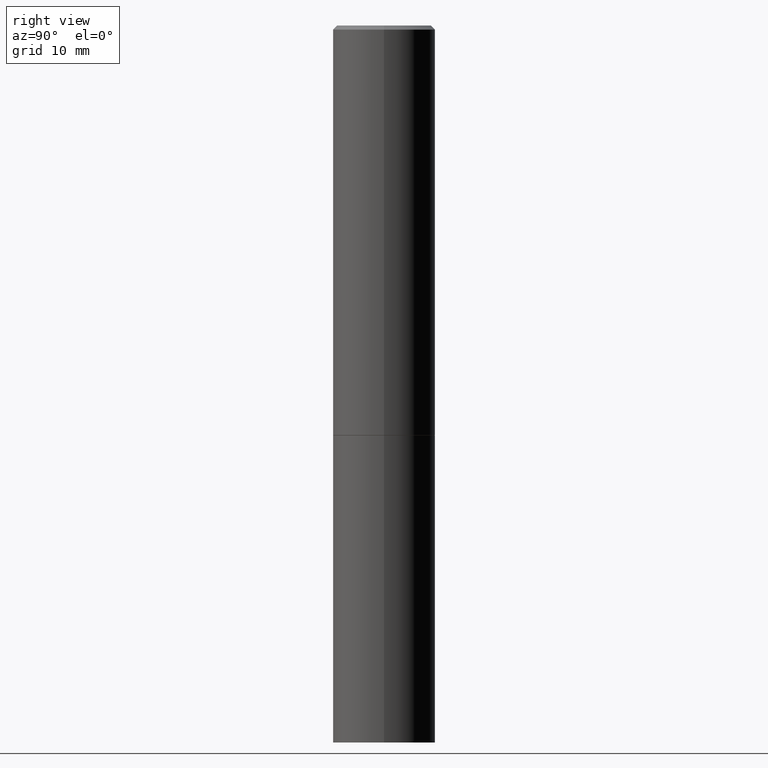
[diagram: clean part render]
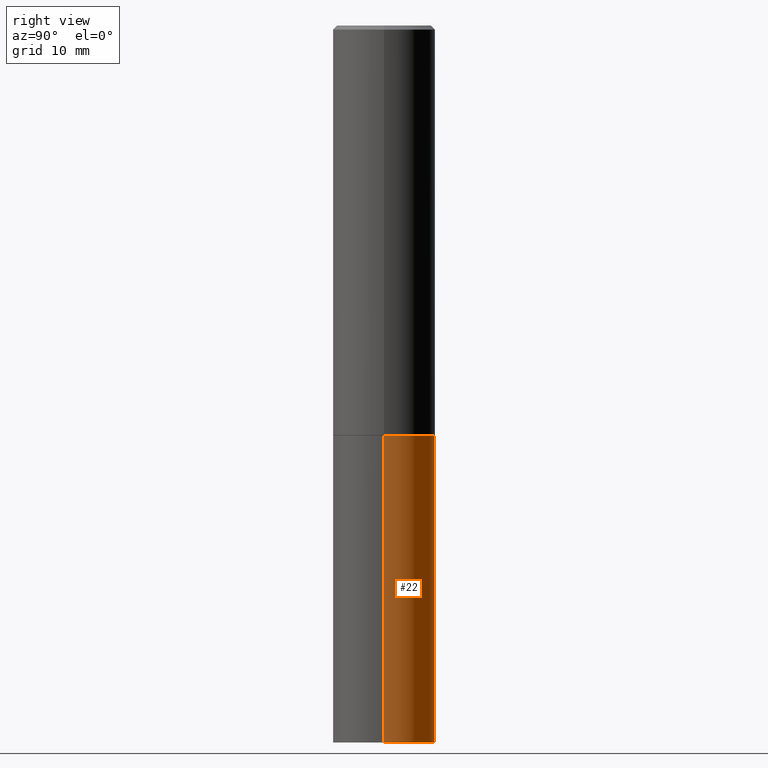
[diagram: same view with one face highlighted and labeled with its STEP entity id]
A machine part, right view. The second image highlights one B-rep face of the part: STEP entity #22.
In plain terms, the highlighted cylindrical surface (partial cylindrical patch) has radius 6.35 mm, axis along (-0, 0, 1).
Its self-contained STEP definition (entity closure, byte-faithful):
#8 = CARTESIAN_POINT ( 'NONE',  ( 0.2500000000000000000, -1.745740669421566678E-15, 1.219044193948983948E-29 ) ) ;
#11 = CARTESIAN_POINT ( 'NONE',  ( -0.2500000000000000000, 1.776356839400250465E-15, -1.229733772563726445E-29 ) ) ;
#22 = ADVANCED_FACE ( 'NONE', ( #337 ), #24, .T. ) ;
#24 = CYLINDRICAL_SURFACE ( 'NONE', #168, 0.2500000000000000000 ) ;
#35 = DIRECTION ( 'NONE',  ( -2.445468806185136597E-29, 3.491481338843145583E-15, 1.000000000000000000 ) ) ;
#44 = VECTOR ( 'NONE', #270, 39.37007874015748143 ) ;
#58 = CARTESIAN_POINT ( 'NONE',  ( 8.559140821647976968E-29, -1.222018468595100934E-14, -3.500000000000000000 ) ) ;
#71 = LINE ( 'NONE', #8, #44 ) ;
#72 = CARTESIAN_POINT ( 'NONE',  ( 0.000000000000000000, 0.000000000000000000, 0.000000000000000000 ) ) ;
#75 = LINE ( 'NONE', #11, #282 ) ;
#77 = DIRECTION ( 'NONE',  ( -2.445468806185136877E-29, 3.491481338843145188E-15, 1.000000000000000000 ) ) ;
#80 = ORIENTED_EDGE ( 'NONE', *, *, #90, .F. ) ;
#82 = VERTEX_POINT ( 'NONE', #183 ) ;
#83 = VERTEX_POINT ( 'NONE', #269 ) ;
#90 = EDGE_CURVE ( 'NONE', #353, #83, #110, .T. ) ;
#100 = ORIENTED_EDGE ( 'NONE', *, *, #351, .T. ) ;
#110 = CIRCLE ( 'NONE', #140, 0.2500000000000000000 ) ;
#125 = EDGE_LOOP ( 'NONE', ( #190, #100, #80, #194 ) ) ;
#140 = AXIS2_PLACEMENT_3D ( 'NONE', #325, #164, #188 ) ;
#164 = DIRECTION ( 'NONE',  ( -2.445468806185136597E-29, 3.491481338843145583E-15, 1.000000000000000000 ) ) ;
#167 = DIRECTION ( 'NONE',  ( 1.000000000000000000, -6.982962677686270655E-15, 0.000000000000000000 ) ) ;
#168 = AXIS2_PLACEMENT_3D ( 'NONE', #72, #35, #294 ) ;
#183 = CARTESIAN_POINT ( 'NONE',  ( -0.2500000000000000000, -7.825216842418399394E-15, -3.500000000000000000 ) ) ;
#188 = DIRECTION ( 'NONE',  ( 1.000000000000000000, -6.982962677686266711E-15, 0.000000000000000000 ) ) ;
#189 = CARTESIAN_POINT ( 'NONE',  ( 0.2500000000000000000, -8.728703347107857054E-15, -2.000000000000000000 ) ) ;
#190 = ORIENTED_EDGE ( 'NONE', *, *, #233, .T. ) ;
#193 = CARTESIAN_POINT ( 'NONE',  ( 0.2500000000000000000, -1.396592535537257602E-14, -3.500000000000000000 ) ) ;
#194 = ORIENTED_EDGE ( 'NONE', *, *, #312, .F. ) ;
#198 = VERTEX_POINT ( 'NONE', #193 ) ;
#199 = DIRECTION ( 'NONE',  ( -2.445468806185136597E-29, 3.491481338843145583E-15, 1.000000000000000000 ) ) ;
#233 = EDGE_CURVE ( 'NONE', #198, #82, #287, .T. ) ;
#269 = CARTESIAN_POINT ( 'NONE',  ( -0.2500000000000000000, -7.825216842418399394E-15, -2.000000000000000000 ) ) ;
#270 = DIRECTION ( 'NONE',  ( -2.445468806185136877E-29, 3.491481338843145188E-15, 1.000000000000000000 ) ) ;
#282 = VECTOR ( 'NONE', #77, 39.37007874015748143 ) ;
#287 = CIRCLE ( 'NONE', #344, 0.2500000000000000000 ) ;
#294 = DIRECTION ( 'NONE',  ( 1.000000000000000000, -6.982962677686266711E-15, 4.876176775795935793E-29 ) ) ;
#312 = EDGE_CURVE ( 'NONE', #198, #353, #71, .T. ) ;
#325 = CARTESIAN_POINT ( 'NONE',  ( 4.890937612370273194E-29, -6.982962677686291165E-15, -2.000000000000000000 ) ) ;
#337 = FACE_OUTER_BOUND ( 'NONE', #125, .T. ) ;
#344 = AXIS2_PLACEMENT_3D ( 'NONE', #58, #199, #167 ) ;
#351 = EDGE_CURVE ( 'NONE', #82, #83, #75, .T. ) ;
#353 = VERTEX_POINT ( 'NONE', #189 ) ;